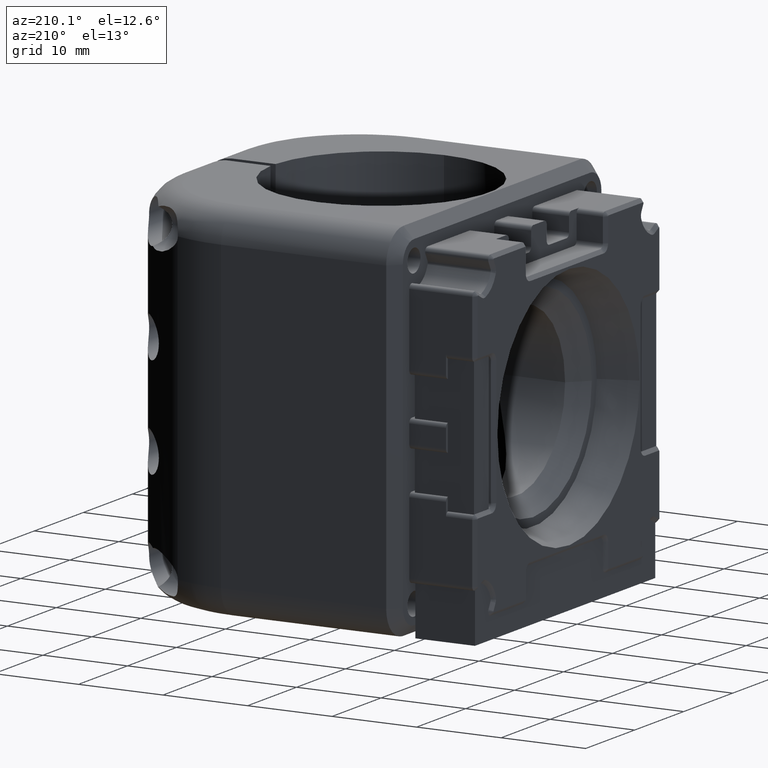
[diagram: clean part render]
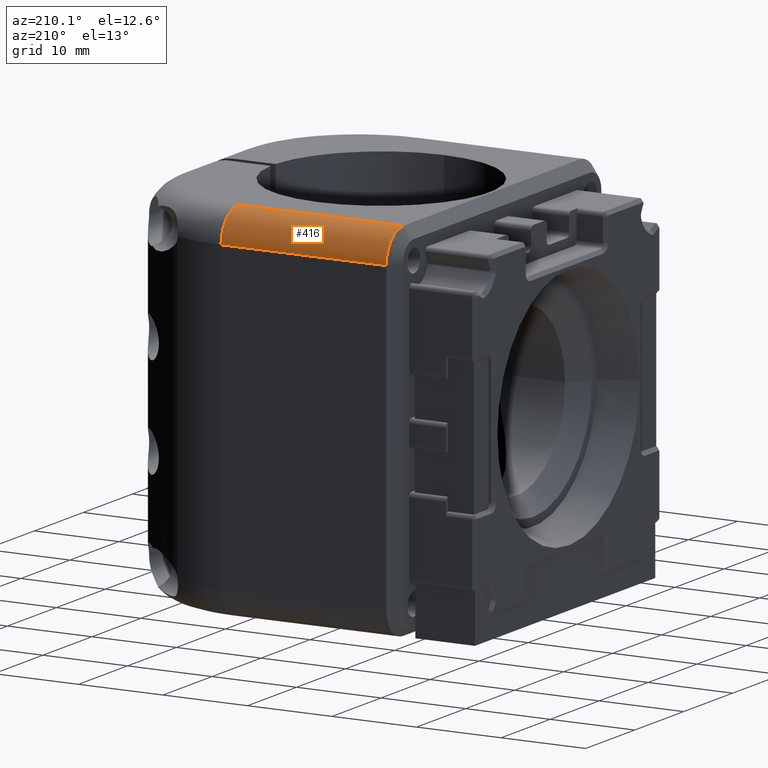
[diagram: same view with one face highlighted and labeled with its STEP entity id]
A machine part, auxiliary view. The second image highlights one B-rep face of the part: STEP entity #416.
In plain terms, the highlighted cylindrical surface (edge-blend (fillet) strip) has radius 3.5 mm, axis along (1, 0, 0).
Its self-contained STEP definition (entity closure, byte-faithful):
#194=CYLINDRICAL_SURFACE('',#8385,3.5);
#416=ADVANCED_FACE('',(#804),#194,.T.);
#804=FACE_OUTER_BOUND('',#1207,.F.);
#1207=EDGE_LOOP('',(#2174,#2175,#2176,#2177,#2178));
#2174=ORIENTED_EDGE('',*,*,#5250,.T.);
#2175=ORIENTED_EDGE('',*,*,#5439,.F.);
#2176=ORIENTED_EDGE('',*,*,#5248,.T.);
#2177=ORIENTED_EDGE('',*,*,#5247,.T.);
#2178=ORIENTED_EDGE('',*,*,#5438,.T.);
#4527=CIRCLE('',#8114,3.5);
#4528=CIRCLE('',#8115,3.5);
#4530=CIRCLE('',#8117,3.5);
#5247=EDGE_CURVE('',#7392,#7391,#4527,.T.);
#5248=EDGE_CURVE('',#7390,#7392,#4528,.T.);
#5250=EDGE_CURVE('',#7404,#7388,#4530,.T.);
#5438=EDGE_CURVE('',#7391,#7404,#6185,.T.);
#5439=EDGE_CURVE('',#7390,#7388,#6186,.T.);
#6185=LINE('',#13005,#6867);
#6186=LINE('',#13006,#6868);
#6867=VECTOR('',#9684,19.55);
#6868=VECTOR('',#9685,19.55);
#7388=VERTEX_POINT('',#11113);
#7390=VERTEX_POINT('',#11115);
#7391=VERTEX_POINT('',#11116);
#7392=VERTEX_POINT('',#11117);
#7404=VERTEX_POINT('',#11129);
#8114=AXIS2_PLACEMENT_3D('',#12426,#9426,#9427);
#8115=AXIS2_PLACEMENT_3D('',#12427,#9428,#9429);
#8117=AXIS2_PLACEMENT_3D('',#12429,#9432,#9433);
#8385=AXIS2_PLACEMENT_3D('',#13479,#10320,#10321);
#9426=DIRECTION('',(-1.,0.,0.));
#9427=DIRECTION('',(0.,0.96225219724218,0.27215934469093));
#9428=DIRECTION('',(-1.,0.,0.));
#9429=DIRECTION('',(0.,0.,1.));
#9432=DIRECTION('',(1.,0.,0.));
#9433=DIRECTION('',(0.,1.,0.));
#9684=DIRECTION('',(1.,0.,0.));
#9685=DIRECTION('',(1.,0.,0.));
#10320=DIRECTION('',(1.,0.,0.));
#10321=DIRECTION('',(0.,1.,0.));
#11113=CARTESIAN_POINT('',(79.6650000120303,18.0000041188307,21.5000003689841));
#11115=CARTESIAN_POINT('',(60.1150000120301,18.0000041188307,21.5000003689841));
#11116=CARTESIAN_POINT('',(60.1150000120302,21.5000041188307,18.0000003689841));
#11117=CARTESIAN_POINT('',(60.1150000120306,21.3678868091783,18.9525580754024));
#11129=CARTESIAN_POINT('',(79.6650000120301,21.5000041188307,18.0000003689841));
#12426=CARTESIAN_POINT('',(60.1150000120301,18.0000041188307,18.0000003689841));
#12427=CARTESIAN_POINT('',(60.1150000120301,18.0000041188307,18.0000003689841));
#12429=CARTESIAN_POINT('',(79.6650000120301,18.0000041188307,18.0000003689841));
#13005=CARTESIAN_POINT('',(60.1150000120301,21.5000041188307,18.0000003689841));
#13006=CARTESIAN_POINT('',(60.1150000120301,18.0000041188307,21.5000003689841));
#13479=CARTESIAN_POINT('',(27.9400000120301,18.0000041188307,18.0000003689841));